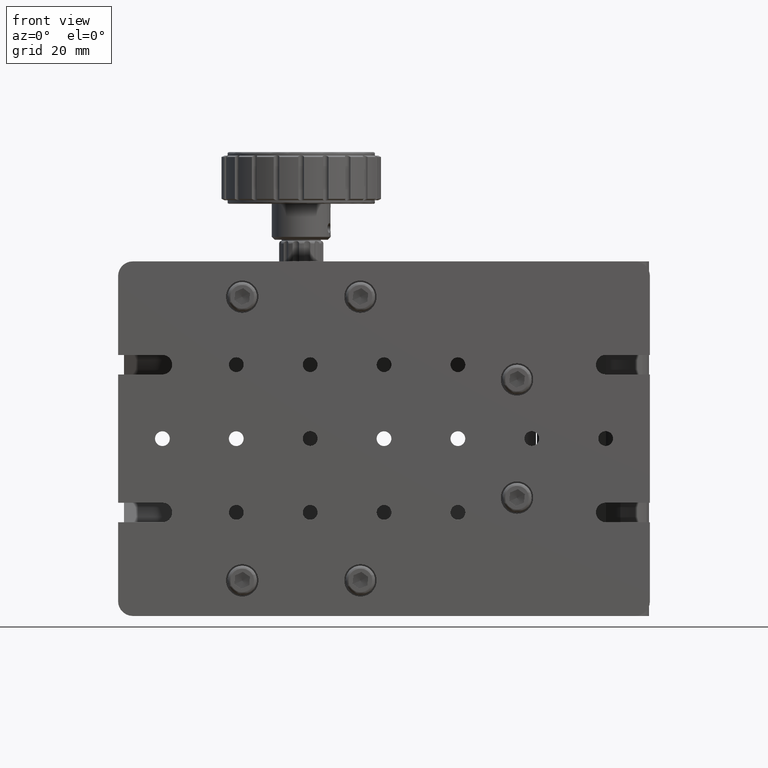
[diagram: clean part render]
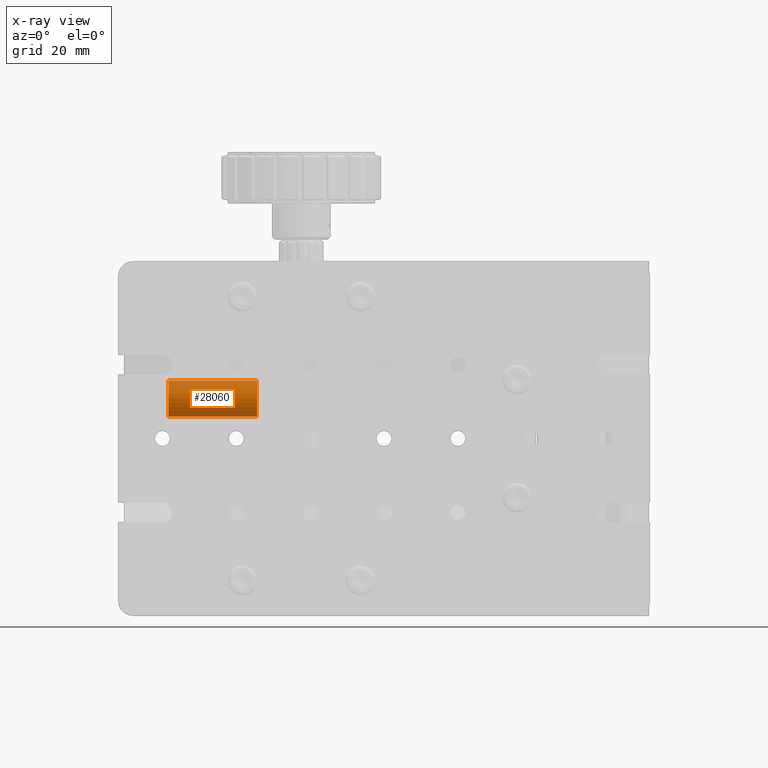
[diagram: x-ray — body ghosted, one internal face saturated and labeled with its STEP entity id]
A machine part, front view, then the same camera in x-ray: the body is ghosted and one INTERNAL B-rep face — a face not visible from any outside direction — is saturated and labeled: STEP entity #28060.
In plain terms, the highlighted cylindrical surface (edge-blend (fillet) strip) has radius 6.35 mm, axis along (-1, -0, -0).
Its self-contained STEP definition (entity closure, byte-faithful):
#957 = CARTESIAN_POINT ( 'NONE',  ( -72.99999999999991500, 35.09013157894755600, 19.10263338379899200 ) ) ;
#7944 = CARTESIAN_POINT ( 'NONE',  ( -72.99999999999991500, 32.50000000000017100, 13.30489948133851600 ) ) ;
#8386 = EDGE_CURVE ( 'NONE', #22472, #40385, #25549, .T. ) ;
#12461 = CARTESIAN_POINT ( 'NONE',  ( -42.99999999999992900, 32.50000000000019200, 13.30489948133858900 ) ) ;
#12656 = LINE ( 'NONE', #20952, #53789 ) ;
#17684 = CARTESIAN_POINT ( 'NONE',  ( -42.99999999999992900, 29.90986842105284900, 7.507165578878095300 ) ) ;
#18922 = ORIENTED_EDGE ( 'NONE', *, *, #31455, .T. ) ;
#20952 = CARTESIAN_POINT ( 'NONE',  ( 31.99999999999983300, 29.90986842105284200, 7.507165578878056200 ) ) ;
#21255 = CARTESIAN_POINT ( 'NONE',  ( 31.99999999999983300, 32.50000000000020600, 13.30489948133853800 ) ) ;
#22472 = VERTEX_POINT ( 'NONE', #45125 ) ;
#24890 = EDGE_CURVE ( 'NONE', #22472, #47012, #55243, .T. ) ;
#25549 = CIRCLE ( 'NONE', #51570, 6.350000000000003200 ) ;
#27578 = DIRECTION ( 'NONE',  ( 1.000000000000000000, 1.206824519700134100E-016, 9.011855792065835400E-018 ) ) ;
#28060 = ADVANCED_FACE ( 'NONE', ( #56369 ), #47198, .F. ) ;
#30525 = DIRECTION ( 'NONE',  ( -1.000000000000000000, -1.206824519700134100E-016, -9.011855792065835400E-018 ) ) ;
#30633 = DIRECTION ( 'NONE',  ( -1.000000000000000000, -1.206824519700134100E-016, -9.011855792065835400E-018 ) ) ;
#31455 = EDGE_CURVE ( 'NONE', #40385, #45867, #12656, .T. ) ;
#31784 = DIRECTION ( 'NONE',  ( -1.000000000000000000, -1.206824519700134100E-016, -9.011855792065835400E-018 ) ) ;
#34605 = ORIENTED_EDGE ( 'NONE', *, *, #8386, .T. ) ;
#36170 = DIRECTION ( 'NONE',  ( 0.0000000000000000000, 0.4078947368421055900, 0.9130289610173980600 ) ) ;
#36501 = ORIENTED_EDGE ( 'NONE', *, *, #60052, .T. ) ;
#38516 = VECTOR ( 'NONE', #31784, 1000.000000000000000 ) ;
#40385 = VERTEX_POINT ( 'NONE', #17684 ) ;
#42411 = DIRECTION ( 'NONE',  ( -1.000000000000000000, -1.206824519700134100E-016, -9.011855792065835400E-018 ) ) ;
#45125 = CARTESIAN_POINT ( 'NONE',  ( -42.99999999999992900, 35.09013157894756300, 19.10263338379907000 ) ) ;
#45797 = CARTESIAN_POINT ( 'NONE',  ( 31.99999999999983300, 35.09013157894757700, 19.10263338379901700 ) ) ;
#45867 = VERTEX_POINT ( 'NONE', #59396 ) ;
#46479 = EDGE_LOOP ( 'NONE', ( #34605, #18922, #36501, #58754 ) ) ;
#46985 = DIRECTION ( 'NONE',  ( 0.0000000000000000000, 0.4078947368421055900, 0.9130289610173980600 ) ) ;
#47012 = VERTEX_POINT ( 'NONE', #957 ) ;
#47198 = CYLINDRICAL_SURFACE ( 'NONE', #57337, 6.350000000000003200 ) ;
#51566 = DIRECTION ( 'NONE',  ( 0.0000000000000000000, -0.4078947368421051400, -0.9130289610173982800 ) ) ;
#51570 = AXIS2_PLACEMENT_3D ( 'NONE', #12461, #27578, #46985 ) ;
#53789 = VECTOR ( 'NONE', #30525, 1000.000000000000000 ) ;
#55243 = LINE ( 'NONE', #45797, #38516 ) ;
#56369 = FACE_OUTER_BOUND ( 'NONE', #46479, .T. ) ;
#57337 = AXIS2_PLACEMENT_3D ( 'NONE', #21255, #30633, #36170 ) ;
#58754 = ORIENTED_EDGE ( 'NONE', *, *, #24890, .F. ) ;
#59396 = CARTESIAN_POINT ( 'NONE',  ( -72.99999999999991500, 29.90986842105281700, 7.507165578878026000 ) ) ;
#59765 = CIRCLE ( 'NONE', #63027, 6.350000000000001400 ) ;
#60052 = EDGE_CURVE ( 'NONE', #45867, #47012, #59765, .T. ) ;
#63027 = AXIS2_PLACEMENT_3D ( 'NONE', #7944, #42411, #51566 ) ;